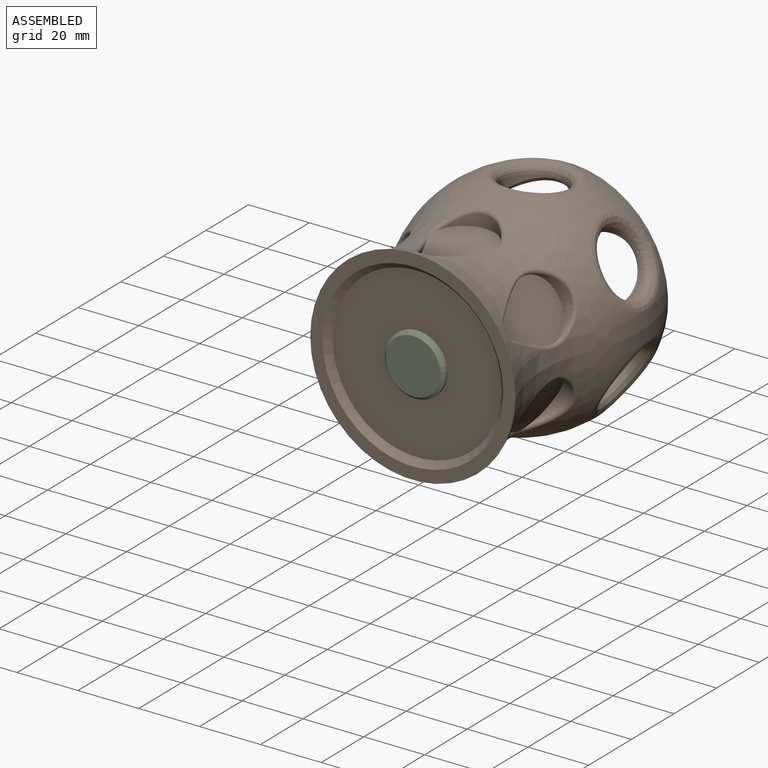
[diagram: assembled view]
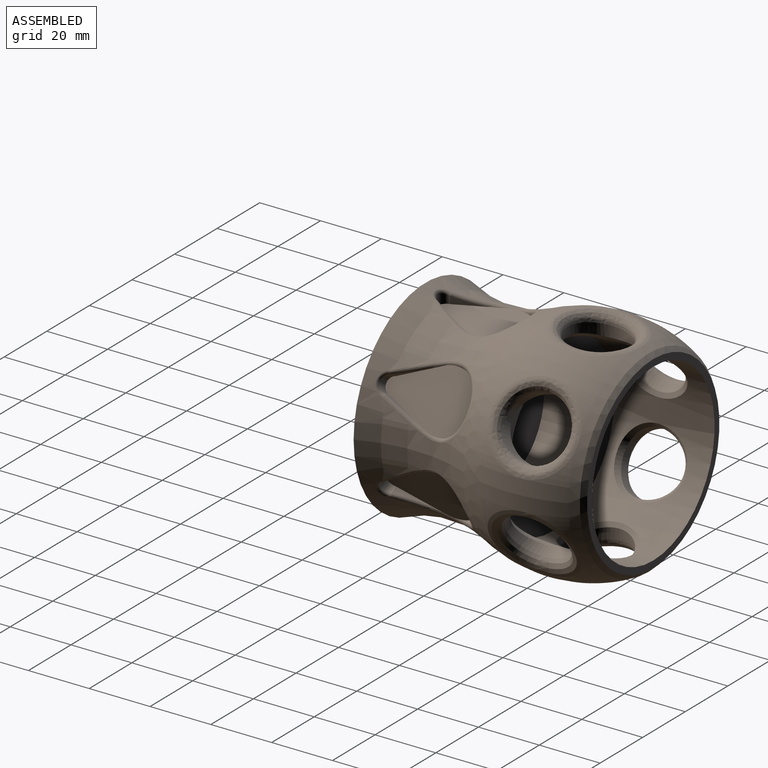
[diagram: assembled view, second angle]
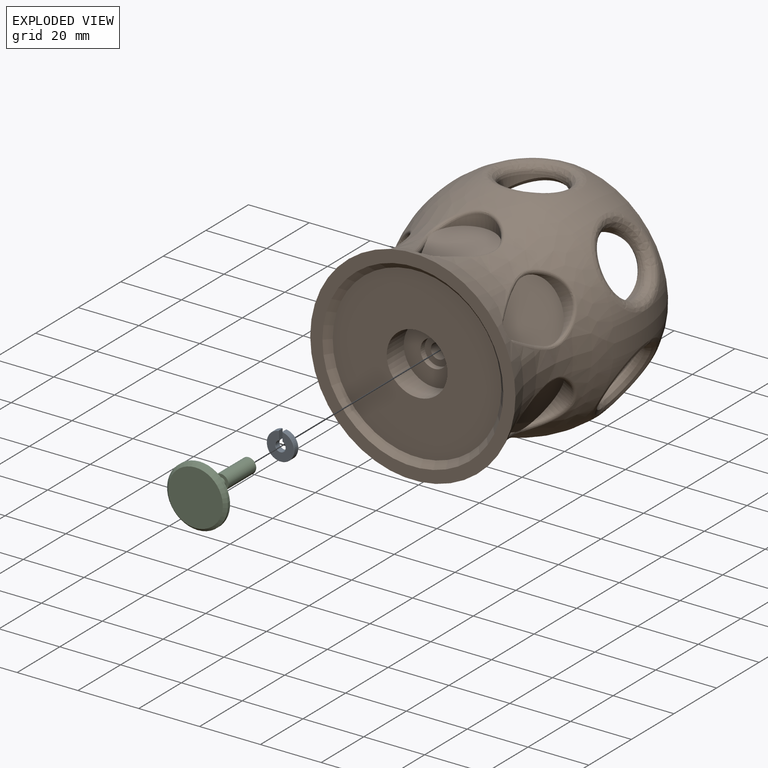
[diagram: exploded view]
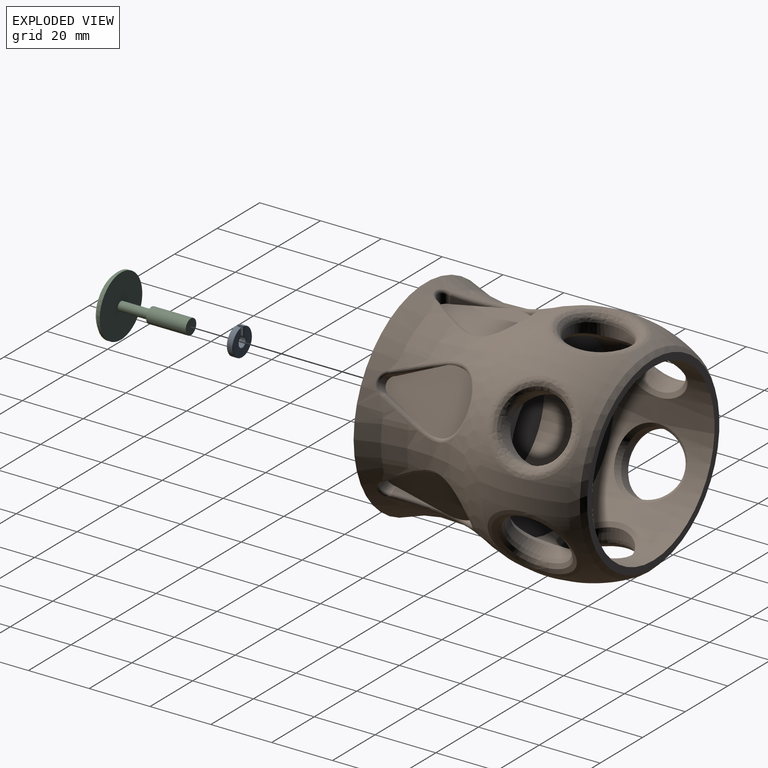
[diagram: exploded view, second angle]
ASSEMBLY  parts=3 mates=2
PART A: 14 faces, bbox 9.1x9.1x2 mm
  f0: plane 2.97x1.8mm, normal (1,0,0), area 5.4mm2, adj f1,f3,f6,f11
  f1: cylinder r=4.55mm len=9.1mm, axis (0,0,-1), area 49.3mm2, adj f0,f2,f7,f10
  f2: plane 2.97x1.8mm, normal (-1,0,0), area 5.4mm2, adj f1,f3,f9,f12
  f3: cylinder r=1.65mm len=3.3mm, axis (0,0,-1), area 16.5mm2, adj f0,f2,f8,f13
  f4: plane 8.9x8.84mm, normal (0,0,1), area 48.8mm2, adj f10,f11,f12,f13
  f5: plane 8.9x8.84mm, normal (0,0,-1), area 48.8mm2, adj f6,f7,f8,f9
  f6: plane 2.97x0.1mm, normal (0.71,0,-0.71), area 0.4mm2, adj f0,f5,f7,f8
  f7: cone r=4.55mm half-angle=45deg, axis (0,0,1), area 3.8mm2, adj f1,f5,f6,f9
  f8: cone r=1.75mm half-angle=45deg, axis (0,0,-1), area 1.3mm2, adj f3,f5,f6,f9
  f9: plane 2.97x0.1mm, normal (-0.71,0,-0.71), area 0.4mm2, adj f2,f5,f7,f8
  f10: cone r=4.45mm half-angle=45deg, axis (0,0,-1), area 3.8mm2, adj f1,f4,f11,f12
  f11: plane 2.97x0.1mm, normal (0.71,0,0.71), area 0.4mm2, adj f0,f4,f10,f13
  f12: plane 2.97x0.1mm, normal (-0.71,0,0.71), area 0.4mm2, adj f2,f4,f10,f13
  f13: cone r=1.65mm half-angle=45deg, axis (0,0,1), area 1.3mm2, adj f3,f4,f11,f12
PART B: 128 faces, bbox 93.3x89x93.3 mm
  f0: torus R=74.99mm, axis (0,1,0), area 4238.5mm2, adj f19,f22,f33,f34,f35,f36,f37,f38
  f1: bspline ~26.63x17.63mm, area 211.9mm2, adj f10,f19,f111
  f2: bspline ~22.73x20.78mm, area 214.2mm2, adj f11,f19,f110
  f3: bspline ~25.37x22.26mm, area 212.7mm2, adj f15,f19,f109
  f4: bspline ~24.04x17.12mm, area 204.7mm2, adj f12,f19,f108
  f5: bspline ~24.46x16.32mm, area 204.6mm2, adj f13,f19,f107
  f6: bspline ~26.38x20.87mm, area 205.2mm2, adj f14,f19,f106
  f7: cylinder r=4.5mm len=9mm, axis (0,-1,0), area 56.5mm2, adj f26,f27
  f8: cylinder r=10mm len=20mm, axis (0,-1,0), area 502.7mm2, adj f21,f26
  f9: cylinder r=20mm len=40mm, axis (0,1,0), area 2136.3mm2, adj f23,f25
  f10: cylinder r=10mm len=20mm, axis (0.87,0,0.5), area 162.4mm2, adj f1,f111,f122,f123
  f11: cylinder r=10mm len=20mm, axis (-0.87,0,0.5), area 153.3mm2, adj f2,f110,f120,f121
  f12: cylinder r=10mm len=20mm, axis (0.87,0,0.5), area 175.8mm2, adj f4,f108,f114,f115
  f13: cylinder r=10mm len=20mm, axis (-0.87,0,0.5), area 176.8mm2, adj f5,f107,f112,f113
  f14: cylinder r=10mm len=20mm, axis (0,0,-1), area 154.1mm2, adj f6,f106,f124,f125,f126,f127
  f15: cylinder r=10mm len=20mm, axis (0,0,-1), area 160.6mm2, adj f3,f109,f116,f117,f118,f119
  f16: cone r=32.48mm half-angle=45deg, axis (0,-1,0), area 399.3mm2, adj f19,f24
  f17: cone r=27.75mm half-angle=45deg, axis (0,-1,0), area 510.9mm2, adj f21,f22
  f18: cylinder r=28.82mm len=57.64mm, axis (0,-1,0), area 3567.2mm2, adj f23,f24,f112,f113,f114,f115,f116,f117
  f19: revolved ~74.47x74.47mm, area 4913.7mm2, adj f0,f1,f2,f3,f4,f5,f6,f16
  f20: cylinder r=2.5mm len=13mm, axis (0,1,0), area 204.2mm2, adj f25,f27
  f21: plane 55.5x55.5mm, normal (0,-1,0), area 2105.1mm2, adj f8,f17
  f22: plane 67.5x67.5mm, normal (0,-1,0), area 798mm2, adj f0,f17
  f23: plane 57.64x57.64mm, normal (0,1,0), area 1352.9mm2, adj f9,f18
  f24: plane 62.14x62.14mm, normal (0,1,0), area 423.3mm2, adj f16,f18
  f25: plane 40x40mm, normal (0,1,0), area 1237mm2, adj f9,f20
  f26: plane 20x20mm, normal (0,-1,0), area 250.5mm2, adj f7,f8
  f27: plane 9x9mm, normal (0,-1,0), area 44mm2, adj f7,f20
  f28: plane 9.1x4.24mm, normal (-0.91,0.42,0), area 11.1mm2, adj f31,f32,f38,f40
  f29: cylinder r=10mm len=19.15mm, axis (0,0,-1), area 0mm2, adj f31,f33
  f30: plane 9.14x4.26mm, normal (0.91,0.42,0), area 11.2mm2, adj f31,f32,f39,f40
  f31: plane 30.13x20.16mm, normal (0,0,1), area 407.8mm2, adj f28,f29,f30,f32,f34,f35,f36,f37
  f32: cylinder r=2.8mm len=5.5mm, axis (0,0,-1), area 23.6mm2, adj f28,f30,f31,f40
  f33: bspline ~21.76x8.13mm, area 41.3mm2, adj f0,f29,f34,f35
  f34: bspline ~7.03x1.92mm, area 8.7mm2, adj f0,f31,f33,f36
  f35: bspline ~7.81x2.23mm, area 9.7mm2, adj f0,f31,f33,f37
  f36: bspline ~5.33x3.29mm, area 7.7mm2, adj f0,f31,f34,f38
  f37: bspline ~4.59x3mm, area 6.8mm2, adj f0,f31,f35,f39
  f38: bspline ~9.5x5.44mm, area 17.1mm2, adj f0,f28,f36,f40
  f39: bspline ~9.53x5.46mm, area 17.1mm2, adj f0,f30,f37,f40
  f40: bspline ~7.72x3.3mm, area 12.7mm2, adj f0,f28,f30,f32,f38,f39
  f41: plane 9.1x4.87mm, normal (-0.45,0.42,0.78), area 11.1mm2, adj f44,f45,f71,f73
  f42: cylinder r=10mm len=16.59mm, axis (-0.87,0,-0.5), area 0mm2, adj f44,f66
  f43: plane 9.14x4.23mm, normal (0.45,0.42,-0.78), area 11.2mm2, adj f44,f45,f72,f73
  f44: plane 30.13x17.48mm, normal (0.87,0,0.5), area 407.8mm2, adj f41,f42,f43,f45,f67,f68,f69,f70
  f45: cylinder r=2.8mm len=6.52mm, axis (-0.87,0,-0.5), area 23.6mm2, adj f41,f43,f44,f73
  f46: plane 9.1x4.24mm, normal (0.91,0.42,0), area 11.1mm2, adj f49,f50,f87,f89
  f47: cylinder r=10mm len=19.15mm, axis (0,0,1), area 0mm2, adj f49,f82
  f48: plane 9.14x4.26mm, normal (-0.91,0.42,0), area 11.2mm2, adj f49,f50,f88,f89
  f49: plane 30.13x20.16mm, normal (0,0,-1), area 407.8mm2, adj f46,f47,f48,f50,f83,f84,f85,f86
  f50: cylinder r=2.8mm len=5.5mm, axis (0,0,1), area 23.6mm2, adj f46,f48,f49,f89
  f51: plane 9.1x4.2mm, normal (0.45,0.42,0.78), area 11.1mm2, adj f54,f55,f79,f81
  f52: cylinder r=10mm len=16.59mm, axis (-0.87,0,0.5), area 0mm2, adj f54,f74
  f53: plane 9.14x4.9mm, normal (-0.45,0.42,-0.78), area 11.2mm2, adj f54,f55,f80,f81
  f54: plane 30.13x17.48mm, normal (0.87,0,-0.5), area 407.8mm2, adj f51,f52,f53,f55,f75,f76,f77,f78
  f55: cylinder r=2.8mm len=6.52mm, axis (-0.87,0,0.5), area 23.6mm2, adj f51,f53,f54,f81
  f56: plane 9.1x4.2mm, normal (-0.45,0.42,-0.78), area 11.1mm2, adj f59,f60,f103,f105
  f57: cylinder r=10mm len=16.59mm, axis (0.87,0,-0.5), area 0mm2, adj f59,f98
  f58: plane 9.14x4.9mm, normal (0.45,0.42,0.78), area 11.2mm2, adj f59,f60,f104,f105
  f59: plane 30.13x17.48mm, normal (-0.87,0,0.5), area 407.8mm2, adj f56,f57,f58,f60,f99,f100,f101,f102
  f60: cylinder r=2.8mm len=6.52mm, axis (0.87,0,-0.5), area 23.6mm2, adj f56,f58,f59,f105
  f61: plane 9.1x4.87mm, normal (0.45,0.42,-0.78), area 11.1mm2, adj f64,f65,f95,f97
  f62: cylinder r=10mm len=16.59mm, axis (0.87,0,0.5), area 0mm2, adj f64,f90
  f63: plane 9.14x4.23mm, normal (-0.45,0.42,0.78), area 11.2mm2, adj f64,f65,f96,f97
  f64: plane 30.13x17.48mm, normal (-0.87,0,-0.5), area 407.8mm2, adj f61,f62,f63,f65,f91,f92,f93,f94
  f65: cylinder r=2.8mm len=6.52mm, axis (0.87,0,0.5), area 23.6mm2, adj f61,f63,f64,f97
  f66: bspline ~18.84x11.43mm, area 41.3mm2, adj f0,f42,f67,f68
  f67: bspline ~7.03x1.75mm, area 8.7mm2, adj f0,f44,f66,f69
  f68: bspline ~7.81x2.18mm, area 9.7mm2, adj f0,f44,f66,f70
  f69: bspline ~5.33x3.27mm, area 7.7mm2, adj f0,f44,f67,f71
  f70: bspline ~4.59x2.74mm, area 6.8mm2, adj f0,f44,f68,f72
  f71: bspline ~9.5x5.81mm, area 17.1mm2, adj f0,f41,f69,f73
  f72: bspline ~9.31x4.65mm, area 17.1mm2, adj f0,f43,f70,f73
  f73: bspline ~6.7x4.24mm, area 12.7mm2, adj f0,f41,f43,f45,f71,f72
  f74: bspline ~18.84x11.43mm, area 41.3mm2, adj f0,f52,f75,f76
  f75: bspline ~7.03x1.9mm, area 8.7mm2, adj f0,f54,f74,f77
  f76: bspline ~7.81x1.76mm, area 9.7mm2, adj f0,f54,f74,f78
  f77: bspline ~5.33x2.96mm, area 7.7mm2, adj f0,f54,f75,f79
  f78: bspline ~4.59x2.98mm, area 6.8mm2, adj f0,f54,f76,f80
  f79: bspline ~9.5x4.99mm, area 17.1mm2, adj f0,f51,f77,f81
  f80: bspline ~9.53x5.83mm, area 17.1mm2, adj f0,f53,f78,f81
  f81: bspline ~6.68x4.26mm, area 12.7mm2, adj f0,f51,f53,f55,f79,f80
  f82: bspline ~21.76x8.13mm, area 41.3mm2, adj f0,f47,f83,f84
  f83: bspline ~7.03x1.92mm, area 8.7mm2, adj f0,f49,f82,f85
  f84: bspline ~7.81x2.23mm, area 9.7mm2, adj f0,f49,f82,f86
  f85: bspline ~5.33x3.29mm, area 7.7mm2, adj f0,f49,f83,f87
  f86: bspline ~4.59x3mm, area 6.8mm2, adj f0,f49,f84,f88
  f87: bspline ~9.5x5.44mm, area 17.1mm2, adj f0,f46,f85,f89
  f88: bspline ~9.53x5.46mm, area 17.1mm2, adj f0,f48,f86,f89
  f89: bspline ~7.72x3.3mm, area 12.7mm2, adj f0,f46,f48,f50,f87,f88
  f90: bspline ~18.84x11.43mm, area 41.3mm2, adj f0,f62,f91,f92
  f91: bspline ~7.03x1.75mm, area 8.7mm2, adj f0,f64,f90,f93
  f92: bspline ~7.81x2.18mm, area 9.7mm2, adj f0,f64,f90,f94
  f93: bspline ~5.33x3.27mm, area 7.7mm2, adj f0,f64,f91,f95
  f94: bspline ~4.59x2.74mm, area 6.8mm2, adj f0,f64,f92,f96
  f95: bspline ~9.5x5.81mm, area 17.1mm2, adj f0,f61,f93,f97
  f96: bspline ~9.31x4.65mm, area 17.1mm2, adj f0,f63,f94,f97
  f97: bspline ~6.7x4.24mm, area 12.7mm2, adj f0,f61,f63,f65,f95,f96
  f98: bspline ~18.84x11.43mm, area 41.3mm2, adj f0,f57,f99,f100
  f99: bspline ~7.03x1.9mm, area 8.7mm2, adj f0,f59,f98,f101
  f100: bspline ~7.81x1.76mm, area 9.7mm2, adj f0,f59,f98,f102
  f101: bspline ~5.33x2.96mm, area 7.7mm2, adj f0,f59,f99,f103
  f102: bspline ~4.59x2.98mm, area 6.8mm2, adj f0,f59,f100,f104
  f103: bspline ~9.5x4.99mm, area 17.1mm2, adj f0,f56,f101,f105
  f104: bspline ~9.53x5.83mm, area 17.1mm2, adj f0,f58,f102,f105
  f105: bspline ~6.68x4.26mm, area 12.7mm2, adj f0,f56,f58,f60,f103,f104
  f106: bspline ~26.43x20.91mm, area 214.2mm2, adj f6,f14,f19
  f107: bspline ~24.43x16.35mm, area 214.8mm2, adj f5,f13,f19
  f108: bspline ~24.06x17.19mm, area 214.7mm2, adj f4,f12,f19
  f109: bspline ~25.34x22.23mm, area 206.7mm2, adj f3,f15,f19
  f110: bspline ~22.57x20.75mm, area 205.2mm2, adj f2,f11,f19
  f111: bspline ~26.61x18.09mm, area 207.5mm2, adj f1,f10,f19
  f112: bspline ~18.87x11.6mm, area 61.2mm2, adj f13,f18,f113
  f113: bspline ~18.87x11.6mm, area 61.2mm2, adj f13,f18,f112
  f114: bspline ~18.87x11.6mm, area 61.2mm2, adj f12,f18,f115
  f115: bspline ~18.87x11.6mm, area 61.2mm2, adj f12,f18,f114
  f116: bspline ~11.44x10.89mm, area 30.6mm2, adj f15,f18,f117,f118
  f117: bspline ~11.44x10.9mm, area 30.6mm2, adj f15,f18,f116,f119
  f118: bspline ~11.44x10.9mm, area 30.6mm2, adj f15,f18,f116,f119
  f119: bspline ~11.44x10.89mm, area 30.6mm2, adj f15,f18,f117,f118
  f120: bspline ~18.87x11.6mm, area 61.2mm2, adj f11,f18,f121
  f121: bspline ~18.87x11.6mm, area 61.2mm2, adj f11,f18,f120
  f122: bspline ~18.87x11.6mm, area 61.2mm2, adj f10,f18,f123
  f123: bspline ~18.87x11.6mm, area 61.2mm2, adj f10,f18,f122
  f124: bspline ~11.44x10.89mm, area 30.6mm2, adj f14,f18,f125,f126
  f125: bspline ~11.44x10.9mm, area 30.6mm2, adj f14,f18,f124,f127
  f126: bspline ~11.44x10.9mm, area 30.6mm2, adj f14,f18,f124,f127
  f127: bspline ~11.44x10.89mm, area 30.6mm2, adj f14,f18,f125,f126
PART C: 8 faces, bbox 20x25x20 mm
  f0: cone r=9mm half-angle=45deg, axis (0,1,0), area 84.4mm2, adj f1,f6
  f1: cylinder r=10mm len=20mm, axis (0,-1,0), area 62.8mm2, adj f0,f5
  f2: cylinder r=2.5mm len=13mm, axis (0,-1,0), area 204.2mm2, adj f4,f7
  f3: cylinder r=1.5mm len=10mm, axis (0,-1,0), area 94.2mm2, adj f4,f5
  f4: plane 5x5mm, normal (0,-1,0), area 12.6mm2, adj f2,f3
  f5: plane 20x20mm, normal (0,1,0), area 307.1mm2, adj f1,f3
  f6: plane 18x18mm, normal (0,-1,0), area 254.5mm2, adj f0
  f7: plane 5x5mm, normal (0,1,0), area 19.6mm2, adj f2
PLACE A rot(axis=(1,0,0),90deg) t=(2.23,-11.88,-2.36)mm
PLACE B t=(2.23,10.13,-2.36)mm fixed
PLACE C t=(2.23,-12.08,-2.36)mm
MATE slider B.f9 <-> C.f0  axis (0,-1,0) through (2.23,-13.87,-2.36)mm
MATE slider A.f1 <-> B.f9  axis (0,-1,0) through (2.23,-13.78,-2.36)mm
